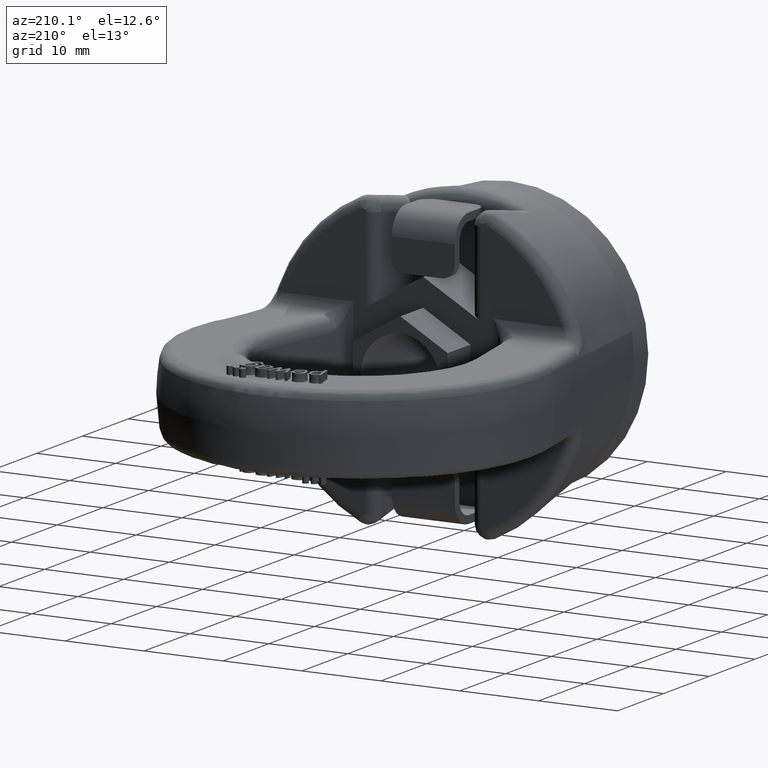
[diagram: clean part render]
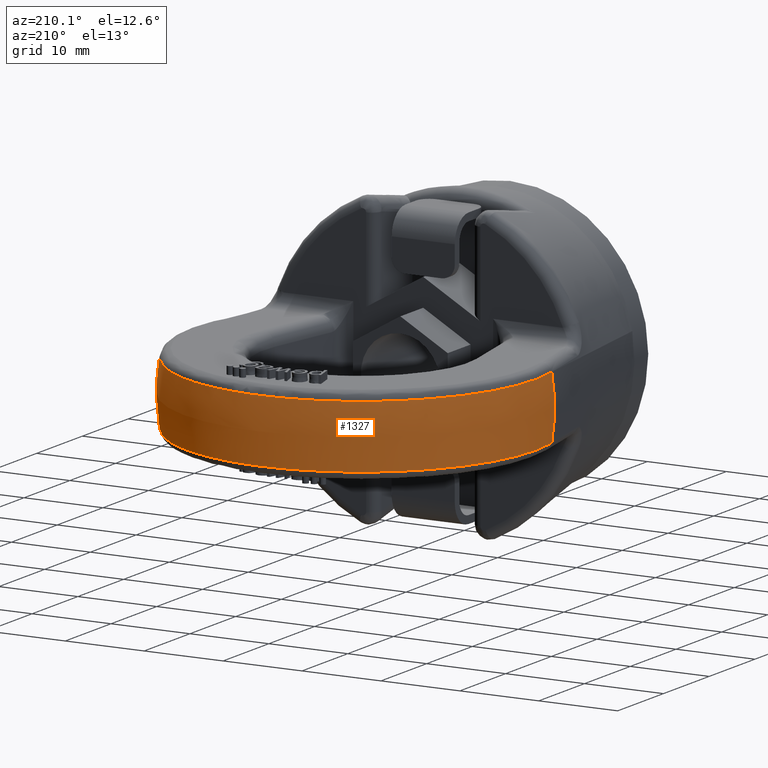
[diagram: same view with one face highlighted and labeled with its STEP entity id]
A machine part, auxiliary view. The second image highlights one B-rep face of the part: STEP entity #1327.
In plain terms, the highlighted spherical surface has radius 22.5 mm.
Its self-contained STEP definition (entity closure, byte-faithful):
#1103=SPHERICAL_SURFACE('',#5122,22.5);
#1107=FACE_OUTER_BOUND('',#1841,.T.);
#1327=ADVANCED_FACE('',(#1107),#1103,.T.);
#1682=CIRCLE('',#5110,22.1362709954225);
#1686=CIRCLE('',#5114,22.1362709954225);
#1691=CIRCLE('',#5120,22.1468830553138);
#1692=CIRCLE('',#5121,22.1468830553138);
#1841=EDGE_LOOP('',(#2785,#2786,#2787,#2788));
#2785=ORIENTED_EDGE('',*,*,#4319,.F.);
#2786=ORIENTED_EDGE('',*,*,#4340,.T.);
#2787=ORIENTED_EDGE('',*,*,#4329,.F.);
#2788=ORIENTED_EDGE('',*,*,#4341,.T.);
#3934=VERTEX_POINT('',#6564);
#3935=VERTEX_POINT('',#6565);
#3944=VERTEX_POINT('',#6637);
#3945=VERTEX_POINT('',#6639);
#4319=EDGE_CURVE('',#3934,#3935,#1682,.T.);
#4329=EDGE_CURVE('',#3944,#3945,#1686,.T.);
#4340=EDGE_CURVE('',#3934,#3945,#1691,.T.);
#4341=EDGE_CURVE('',#3944,#3935,#1692,.T.);
#5110=AXIS2_PLACEMENT_3D('',#6563,#5428,#5429);
#5114=AXIS2_PLACEMENT_3D('',#6638,#5436,#5437);
#5120=AXIS2_PLACEMENT_3D('',#6714,#5448,#5449);
#5121=AXIS2_PLACEMENT_3D('',#6715,#5450,#5451);
#5122=AXIS2_PLACEMENT_3D('',#6716,#5452,#5453);
#5428=DIRECTION('',(-2.31642728823096E-15,-1.,0.));
#5429=DIRECTION('',(1.,-2.35096978574511E-15,0.));
#5436=DIRECTION('',(-2.31642728823096E-15,-1.,0.));
#5437=DIRECTION('',(1.,-2.35096978574511E-15,0.));
#5448=DIRECTION('',(0.,-1.31989829693887E-16,-1.));
#5449=DIRECTION('',(0.,1.,-1.17492163907051E-16));
#5450=DIRECTION('',(-2.34291072916505E-15,-1.31989829693887E-16,1.));
#5451=DIRECTION('',(-2.78277345242966E-31,1.,1.17492163907051E-16));
#5452=DIRECTION('',(-2.2551949482736E-15,-1.,0.));
#5453=DIRECTION('',(1.,-2.46716227694479E-15,0.));
#6563=CARTESIAN_POINT('',(-6.14532657235411E-14,28.4706692345727,0.));
#6564=CARTESIAN_POINT('',(-21.7772570046948,28.4706692345727,3.97058823529414));
#6565=CARTESIAN_POINT('',(-21.7772570046947,28.4706692345726,-3.97058823529418));
#6637=CARTESIAN_POINT('',(21.7772570046948,28.4706692345727,-3.97058823529409));
#6638=CARTESIAN_POINT('',(-6.14532657235411E-14,28.4706692345727,0.));
#6639=CARTESIAN_POINT('',(21.7772570046947,28.4706692345726,3.97058823529412));
#6714=CARTESIAN_POINT('',(0.,32.5,3.97058823529412));
#6715=CARTESIAN_POINT('',(9.30273377756711E-15,32.5,-3.97058823529412));
#6716=CARTESIAN_POINT('',(0.,32.5,0.));